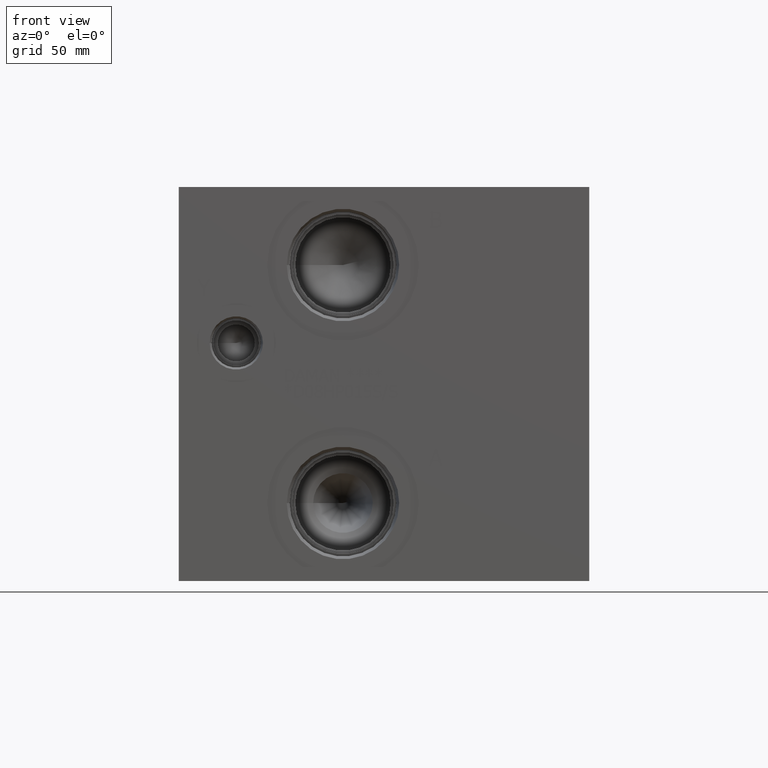
[diagram: clean part render]
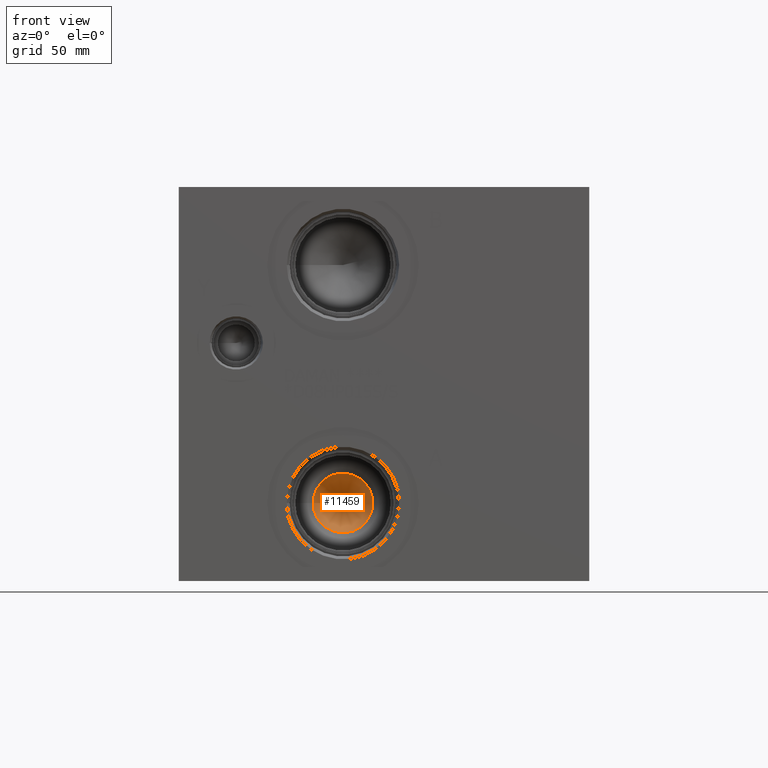
[diagram: same view with one face highlighted and labeled with its STEP entity id]
A machine part, front view. The second image highlights one B-rep face of the part: STEP entity #11459.
In plain terms, the highlighted conical surface has half-angle 15 deg.
Its self-contained STEP definition (entity closure, byte-faithful):
#44=CONICAL_SURFACE('',#12088,10.87755,0.261799387799149);
#283=CIRCLE('',#12071,11.5262434037684);
#1348=FACE_OUTER_BOUND('',#2013,.T.);
#2013=EDGE_LOOP('',(#10039,#10040,#10041));
#3100=LINE('',#19540,#4151);
#4151=VECTOR('',#14358,10.87755);
#5461=VERTEX_POINT('',#19505);
#5471=VERTEX_POINT('',#19539);
#7015=EDGE_CURVE('',#5461,#5461,#283,.T.);
#7031=EDGE_CURVE('',#5461,#5471,#3100,.T.);
#10039=ORIENTED_EDGE('',*,*,#7015,.T.);
#10040=ORIENTED_EDGE('',*,*,#7031,.T.);
#10041=ORIENTED_EDGE('',*,*,#7031,.F.);
#11459=ADVANCED_FACE('',(#1348),#44,.F.);
#12071=AXIS2_PLACEMENT_3D('',#19507,#14317,#14318);
#12088=AXIS2_PLACEMENT_3D('',#19538,#14356,#14357);
#14317=DIRECTION('center_axis',(0.,-1.,0.));
#14318=DIRECTION('ref_axis',(1.,0.,0.));
#14356=DIRECTION('center_axis',(0.,-1.,0.));
#14357=DIRECTION('ref_axis',(1.,0.,0.));
#14358=DIRECTION('',(0.258819045102521,0.965925826289068,3.16961915143176E-17));
#19505=CARTESIAN_POINT('',(51.9737565962316,38.9746725204722,30.1752));
#19507=CARTESIAN_POINT('Origin',(63.5,38.9746725204722,30.1752));
#19538=CARTESIAN_POINT('Origin',(63.5,41.3956292618708,30.1752));
#19539=CARTESIAN_POINT('',(63.5,81.9911985237417,30.1752));
#19540=CARTESIAN_POINT('',(52.62245,41.3956292618708,30.1752));